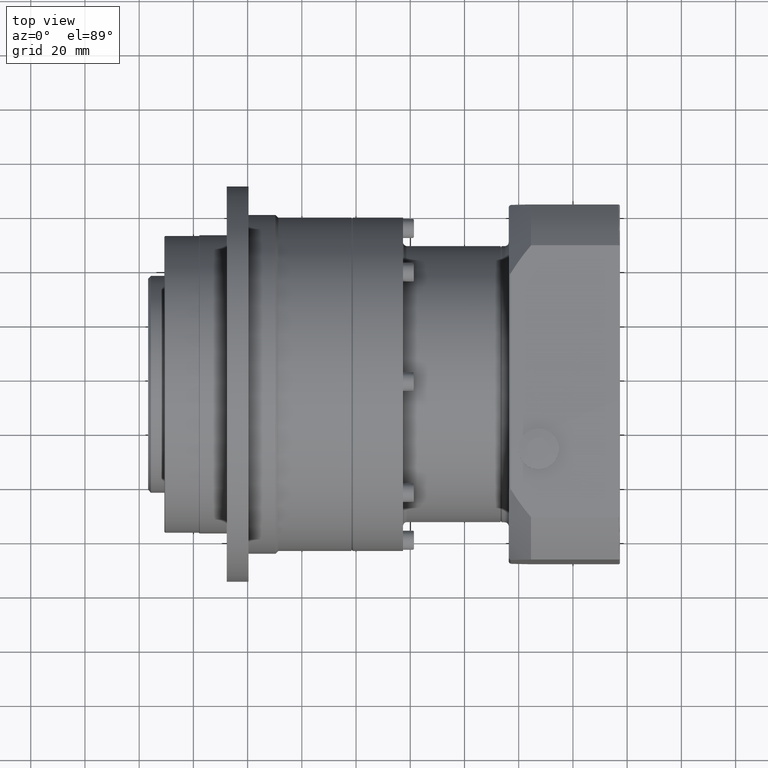
[diagram: clean part render]
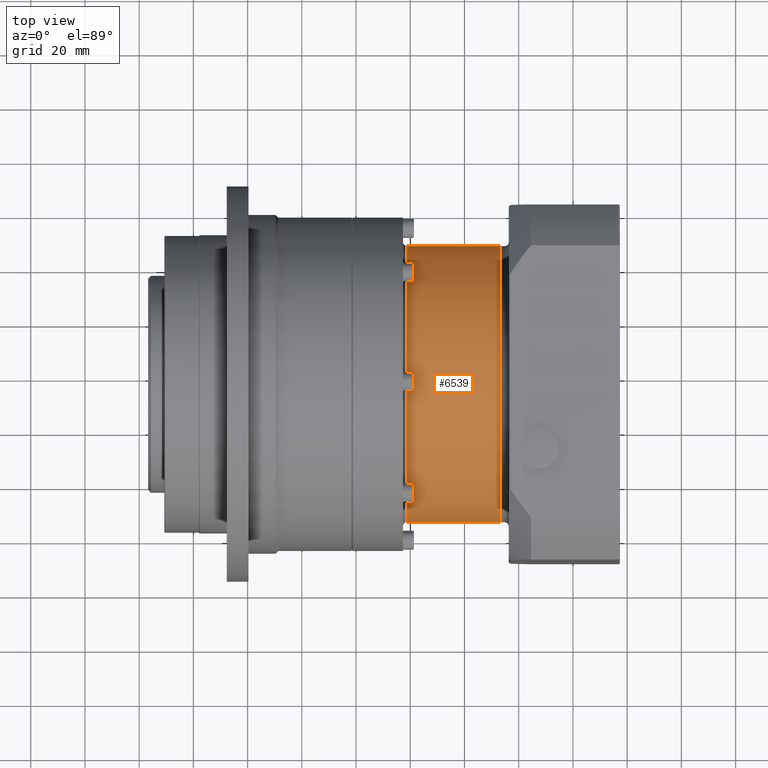
[diagram: same view with one face highlighted and labeled with its STEP entity id]
A machine part, top view. The second image highlights one B-rep face of the part: STEP entity #6539.
In plain terms, the highlighted cylindrical surface (bore or boss wall) has radius 51 mm, axis along (1, 0, 0).
Its self-contained STEP definition (entity closure, byte-faithful):
#1156=FACE_BOUND('',#2145,.T.);
#1567=FACE_OUTER_BOUND('',#2144,.T.);
#2144=EDGE_LOOP('',(#5065));
#2145=EDGE_LOOP('',(#5066));
#2760=CIRCLE('',#7189,51.);
#2766=CIRCLE('',#7197,51.);
#3256=VERTEX_POINT('',#10653);
#3262=VERTEX_POINT('',#10667);
#3947=EDGE_CURVE('',#3256,#3256,#2760,.T.);
#3953=EDGE_CURVE('',#3262,#3262,#2766,.T.);
#5065=ORIENTED_EDGE('',*,*,#3953,.F.);
#5066=ORIENTED_EDGE('',*,*,#3947,.F.);
#5893=CYLINDRICAL_SURFACE('',#7196,51.);
#6539=ADVANCED_FACE('',(#1567,#1156),#5893,.T.);
#7189=AXIS2_PLACEMENT_3D('',#10654,#8542,#8543);
#7196=AXIS2_PLACEMENT_3D('',#10666,#8556,#8557);
#7197=AXIS2_PLACEMENT_3D('',#10668,#8558,#8559);
#8542=DIRECTION('center_axis',(-1.,-1.7280174216235E-15,-1.07569171073903E-14));
#8543=DIRECTION('ref_axis',(1.72801742087041E-15,-1.,7.00102894649482E-11));
#8556=DIRECTION('center_axis',(1.,1.7280174216235E-15,1.07569171073903E-14));
#8557=DIRECTION('ref_axis',(-1.72801742087041E-15,1.,-7.00101057679283E-11));
#8558=DIRECTION('center_axis',(1.,1.7280174216235E-15,1.07569171073903E-14));
#8559=DIRECTION('ref_axis',(1.07569171075113E-14,-7.00101057679283E-11,
-1.));
#10653=CARTESIAN_POINT('',(-1.19162748380703,-31.5168586315028,73.4991007376918));
#10654=CARTESIAN_POINT('Origin',(-1.19162748380694,-82.5168586315028,73.4991007412623));
#10666=CARTESIAN_POINT('Origin',(15.3083725161931,-82.5168586315027,73.4991007412625));
#10667=CARTESIAN_POINT('',(33.308372516193,-31.5168586315027,73.4991007376922));
#10668=CARTESIAN_POINT('Origin',(33.3083725161931,-82.5168586315027,73.4991007412627));